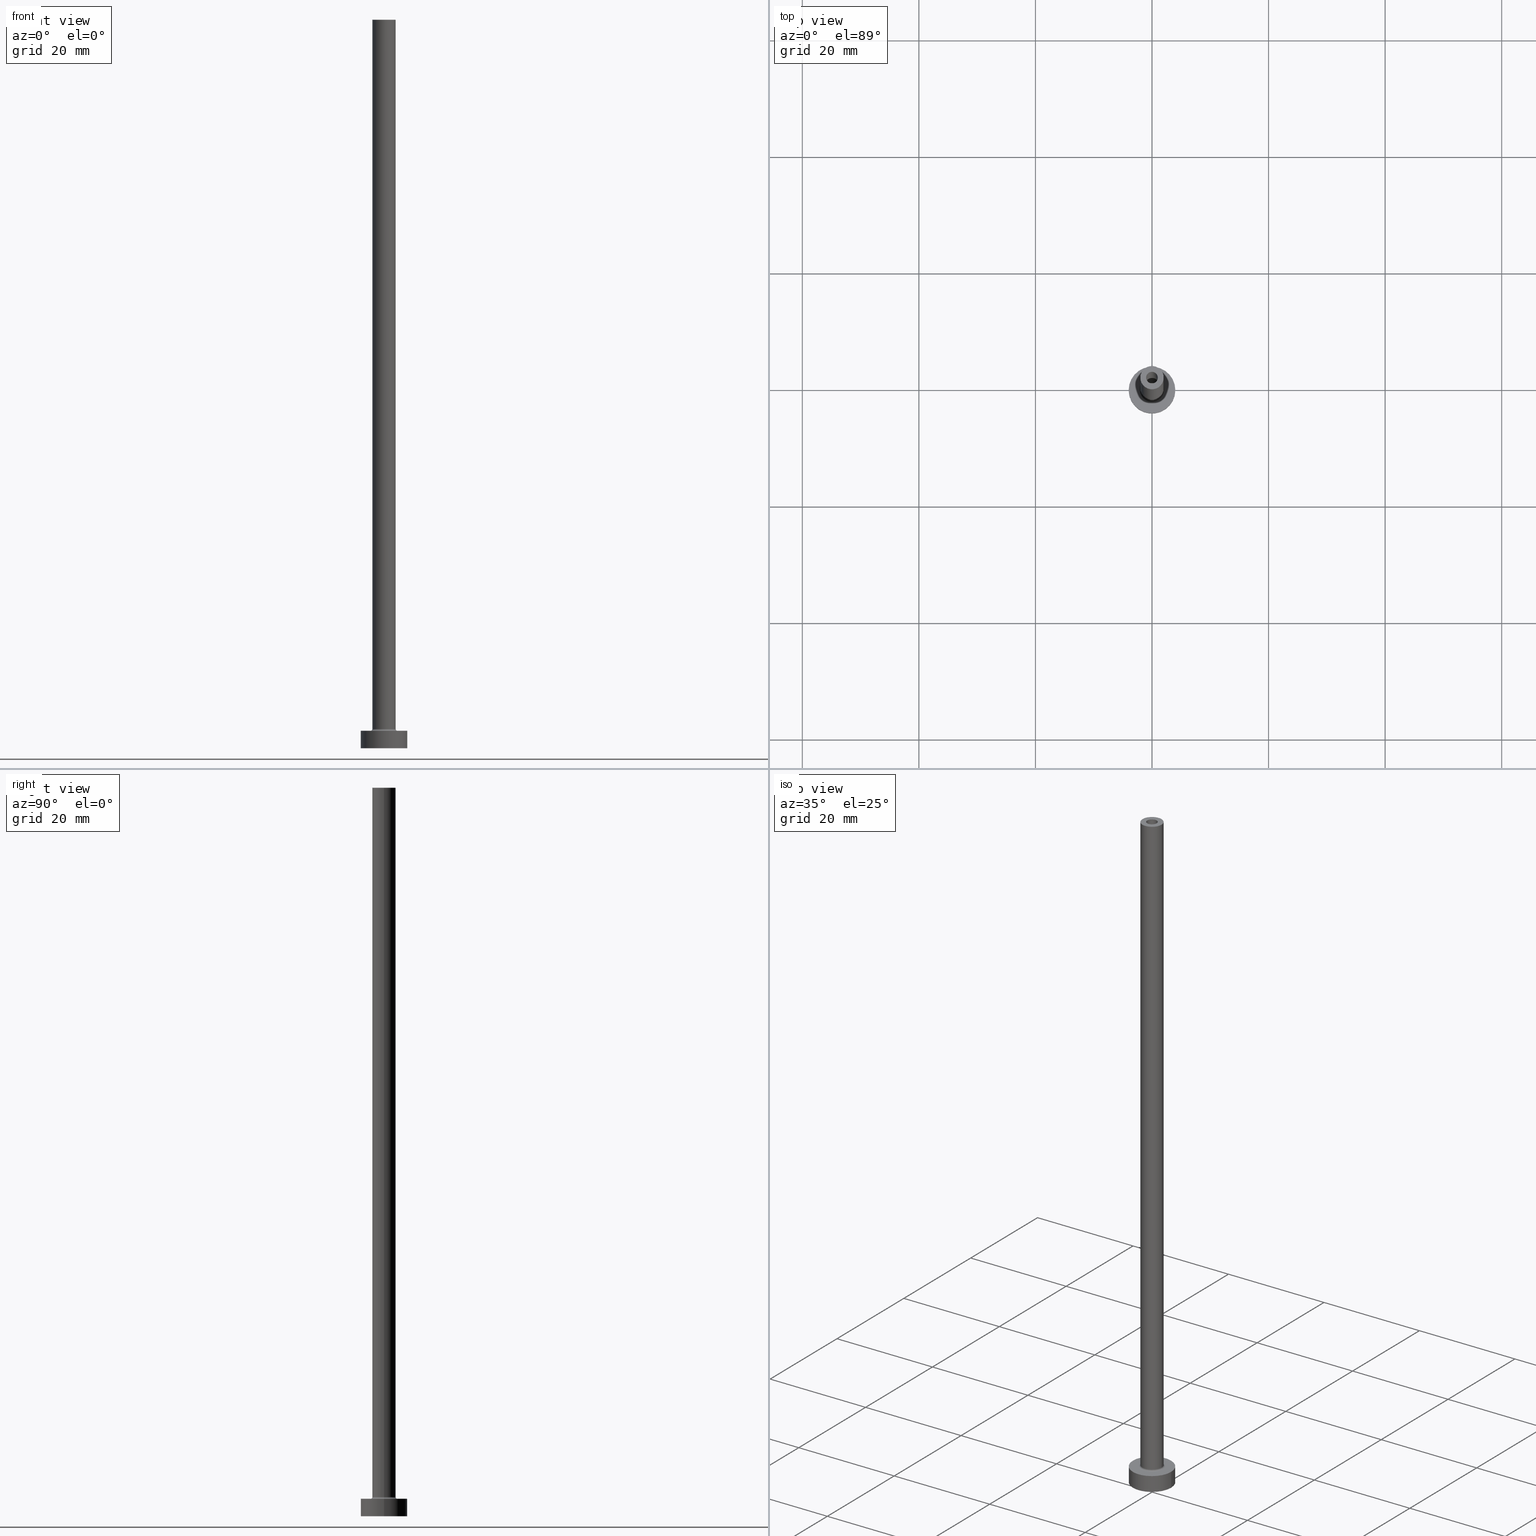
[diagram: canonical four-view strip — front | top / right | iso, engineering-drawing reading convention]
A machine part, canonical four-view strip (front | top / right | iso — engineering-drawing reading convention). The complete STEP part file that produces these views, byte-faithful:
ISO-10303-21;
HEADER;
FILE_DESCRIPTION (( 'STEP AP203' ),
    '1' );
FILE_NAME ('e7a0.STEP',
    '2023-02-13T12:51:04',
    ( '' ),
    ( '' ),
    'SwSTEP 2.0',
    'SolidWorks 2019',
    '' );
FILE_SCHEMA (( 'CONFIG_CONTROL_DESIGN' ));
ENDSEC;

DATA;
#1 = CARTESIAN_POINT ( 'NONE',  ( 0.000000000000000000, 0.000000000000000000, 125.0000000000000000 ) ) ;
#2 = SECURITY_CLASSIFICATION_LEVEL ( 'unclassified' ) ;
#3 = CIRCLE ( 'NONE', #416, 1.149999999999999911 ) ;
#4 =( NAMED_UNIT ( * ) SI_UNIT ( $, .STERADIAN. ) SOLID_ANGLE_UNIT ( ) );
#5 = CC_DESIGN_APPROVAL ( #181, ( #192 ) ) ;
#6 = DIRECTION ( 'NONE',  ( 0.000000000000000000, 0.000000000000000000, 1.000000000000000000 ) ) ;
#7 = ORIENTED_EDGE ( 'NONE', *, *, #380, .T. ) ;
#8 = EDGE_LOOP ( 'NONE', ( #263, #45, #458, #90 ) ) ;
#9 = FACE_OUTER_BOUND ( 'NONE', #265, .T. ) ;
#10 = CC_DESIGN_PERSON_AND_ORGANIZATION_ASSIGNMENT ( #229, #414, ( #385 ) ) ;
#11 = CIRCLE ( 'NONE', #269, 2.000000000000000000 ) ;
#12 = EDGE_LOOP ( 'NONE', ( #66, #330, #14, #21 ) ) ;
#13 = AXIS2_PLACEMENT_3D ( 'NONE', #328, #247, #244 ) ;
#14 = ORIENTED_EDGE ( 'NONE', *, *, #155, .T. ) ;
#15 = DIRECTION ( 'NONE',  ( -0.000000000000000000, -0.000000000000000000, -1.000000000000000000 ) ) ;
#16 = ADVANCED_BREP_SHAPE_REPRESENTATION ( 'e7a0', ( #326, #33 ), #146 ) ;
#17 = CARTESIAN_POINT ( 'NONE',  ( 0.000000000000000000, 0.000000000000000000, 3.000000000000000000 ) ) ;
#18 = EDGE_LOOP ( 'NONE', ( #426, #252, #58, #124 ) ) ;
#19 = VERTEX_POINT ( 'NONE', #428 ) ;
#20 = CARTESIAN_POINT ( 'NONE',  ( -4.000000000000000000, 0.000000000000000000, 3.000000000000000000 ) ) ;
#21 = ORIENTED_EDGE ( 'NONE', *, *, #68, .F. ) ;
#22 = CC_DESIGN_PERSON_AND_ORGANIZATION_ASSIGNMENT ( #431, #370, ( #159 ) ) ;
#23 = AXIS2_PLACEMENT_3D ( 'NONE', #209, #433, #393 ) ;
#24 = FACE_BOUND ( 'NONE', #162, .T. ) ;
#25 = DATE_AND_TIME ( #207, #176 ) ;
#26 = DIRECTION ( 'NONE',  ( 1.000000000000000000, 0.000000000000000000, -0.000000000000000000 ) ) ;
#27 = ORIENTED_EDGE ( 'NONE', *, *, #386, .F. ) ;
#28 = CARTESIAN_POINT ( 'NONE',  ( -2.299999999999999822, 2.816687638038912056E-16, 2.999999999999998668 ) ) ;
#29 = ADVANCED_FACE ( 'NONE', ( #167 ), #355, .F. ) ;
#30 = DATE_AND_TIME ( #351, #248 ) ;
#31 = CARTESIAN_POINT ( 'NONE',  ( 2.299999999999999822, 0.000000000000000000, 3.299999999999997158 ) ) ;
#32 = PERSON_AND_ORGANIZATION ( #59, #199 ) ;
#33 = AXIS2_PLACEMENT_3D ( 'NONE', #137, #280, #343 ) ;
#34 = DIRECTION ( 'NONE',  ( 1.000000000000000000, 0.000000000000000000, 0.000000000000000000 ) ) ;
#35 = DIRECTION ( 'NONE',  ( 0.000000000000000000, 0.000000000000000000, 1.000000000000000000 ) ) ;
#36 = CLOSED_SHELL ( 'NONE', ( #372, #397, #241, #329, #344, #297, #91, #76, #51, #140, #350, #160, #308, #29 ) ) ;
#37 = CIRCLE ( 'NONE', #299, 4.000000000000000000 ) ;
#38 = CC_DESIGN_APPROVAL ( #224, ( #218 ) ) ;
#39 = ORIENTED_EDGE ( 'NONE', *, *, #125, .T. ) ;
#40 = EDGE_CURVE ( 'NONE', #449, #242, #64, .T. ) ;
#41 = DESIGN_CONTEXT ( 'detailed design', #253, 'design' ) ;
#42 = VECTOR ( 'NONE', #321, 1000.000000000000000 ) ;
#43 = PRODUCT_RELATED_PRODUCT_CATEGORY ( 'detail', '', ( #385 ) ) ;
#44 = PLANE ( 'NONE',  #82 ) ;
#45 = ORIENTED_EDGE ( 'NONE', *, *, #270, .F. ) ;
#46 = ORIENTED_EDGE ( 'NONE', *, *, #461, .T. ) ;
#47 = ORIENTED_EDGE ( 'NONE', *, *, #257, .T. ) ;
#48 = CARTESIAN_POINT ( 'NONE',  ( 4.000000000000000000, 4.898587196589412829E-16, 3.000000000000000000 ) ) ;
#49 = AXIS2_PLACEMENT_3D ( 'NONE', #249, #110, #331 ) ;
#50 = ORIENTED_EDGE ( 'NONE', *, *, #302, .F. ) ;
#51 = ADVANCED_FACE ( 'NONE', ( #421 ), #376, .T. ) ;
#52 = CARTESIAN_POINT ( 'NONE',  ( -1.149999999999999911, 0.000000000000000000, 0.000000000000000000 ) ) ;
#53 = APPROVAL_ROLE ( '' ) ;
#54 = CARTESIAN_POINT ( 'NONE',  ( -1.149999999999999911, 0.000000000000000000, 90.00000000000000000 ) ) ;
#55 = CIRCLE ( 'NONE', #324, 1.000000000000000000 ) ;
#56 = DIRECTION ( 'NONE',  ( 0.000000000000000000, 0.000000000000000000, 1.000000000000000000 ) ) ;
#57 = EDGE_CURVE ( 'NONE', #223, #323, #201, .T. ) ;
#58 = ORIENTED_EDGE ( 'NONE', *, *, #57, .T. ) ;
#59 = PERSON ( 'NEUR�EN�', 'NEUR�EN�', 'NEUR�EN�', ('NEUR�EN�'), ('NEUR�EN�'), ('NEUR�EN�') ) ;
#60 = DIRECTION ( 'NONE',  ( -1.000000000000000000, 0.000000000000000000, 0.000000000000000000 ) ) ;
#61 = FACE_BOUND ( 'NONE', #407, .T. ) ;
#62 = CARTESIAN_POINT ( 'NONE',  ( 1.000000000000000000, 1.224646799147353207E-16, 125.0000000000000000 ) ) ;
#63 = EDGE_LOOP ( 'NONE', ( #327, #345, #272, #338 ) ) ;
#64 = CIRCLE ( 'NONE', #399, 0.2999999999999999334 ) ;
#65 = AXIS2_PLACEMENT_3D ( 'NONE', #294, #444, #179 ) ;
#66 = ORIENTED_EDGE ( 'NONE', *, *, #290, .F. ) ;
#67 = CYLINDRICAL_SURFACE ( 'NONE', #23, 4.000000000000000000 ) ;
#68 = EDGE_CURVE ( 'NONE', #282, #288, #347, .T. ) ;
#69 = ORIENTED_EDGE ( 'NONE', *, *, #275, .T. ) ;
#70 = DIRECTION ( 'NONE',  ( -1.000000000000000000, 1.224646799147353207E-16, 0.000000000000000000 ) ) ;
#71 = CARTESIAN_POINT ( 'NONE',  ( -1.000000000000000000, 0.000000000000000000, 125.0000000000000000 ) ) ;
#72 = DIRECTION ( 'NONE',  ( 0.000000000000000000, 0.000000000000000000, 1.000000000000000000 ) ) ;
#73 = FACE_OUTER_BOUND ( 'NONE', #98, .T. ) ;
#74 = CIRCLE ( 'NONE', #169, 2.000000000000000000 ) ;
#75 = APPROVAL_PERSON_ORGANIZATION ( #298, #224, #53 ) ;
#76 = ADVANCED_FACE ( 'NONE', ( #164, #305 ), #453, .F. ) ;
#77 = CYLINDRICAL_SURFACE ( 'NONE', #429, 1.149999999999999911 ) ;
#78 = COORDINATED_UNIVERSAL_TIME_OFFSET ( 1, 0, .AHEAD. ) ;
#79 = ORIENTED_EDGE ( 'NONE', *, *, #211, .F. ) ;
#80 = PERSON_AND_ORGANIZATION ( #59, #199 ) ;
#81 = CARTESIAN_POINT ( 'NONE',  ( 2.000000000000000000, 2.449293598294705921E-16, 125.0000000000000000 ) ) ;
#82 = AXIS2_PLACEMENT_3D ( 'NONE', #17, #447, #26 ) ;
#83 = DIRECTION ( 'NONE',  ( 0.000000000000000000, 0.000000000000000000, 1.000000000000000000 ) ) ;
#84 = LINE ( 'NONE', #183, #450 ) ;
#85 = ORIENTED_EDGE ( 'NONE', *, *, #380, .F. ) ;
#86 = ORIENTED_EDGE ( 'NONE', *, *, #377, .T. ) ;
#87 = VERTEX_POINT ( 'NONE', #81 ) ;
#88 = DIRECTION ( 'NONE',  ( -0.000000000000000000, -0.000000000000000000, -1.000000000000000000 ) ) ;
#89 = ORIENTED_EDGE ( 'NONE', *, *, #125, .F. ) ;
#90 = ORIENTED_EDGE ( 'NONE', *, *, #334, .F. ) ;
#91 = ADVANCED_FACE ( 'NONE', ( #336, #219 ), #44, .T. ) ;
#92 = ORIENTED_EDGE ( 'NONE', *, *, #188, .F. ) ;
#93 = EDGE_LOOP ( 'NONE', ( #86, #221 ) ) ;
#94 = LINE ( 'NONE', #454, #333 ) ;
#95 = ORIENTED_EDGE ( 'NONE', *, *, #412, .T. ) ;
#96 = FACE_OUTER_BOUND ( 'NONE', #141, .T. ) ;
#97 = DIRECTION ( 'NONE',  ( 0.000000000000000000, 0.000000000000000000, -1.000000000000000000 ) ) ;
#98 = EDGE_LOOP ( 'NONE', ( #374, #185, #413, #388 ) ) ;
#99 = DIRECTION ( 'NONE',  ( 0.000000000000000000, 0.000000000000000000, 1.000000000000000000 ) ) ;
#100 = DIRECTION ( 'NONE',  ( 1.000000000000000000, 0.000000000000000000, 0.000000000000000000 ) ) ;
#101 = VECTOR ( 'NONE', #234, 1000.000000000000000 ) ;
#102 = DIRECTION ( 'NONE',  ( 0.000000000000000000, 0.000000000000000000, 1.000000000000000000 ) ) ;
#103 = CC_DESIGN_PERSON_AND_ORGANIZATION_ASSIGNMENT ( #457, #139, ( #192 ) ) ;
#104 = DIRECTION ( 'NONE',  ( 1.000000000000000000, 0.000000000000000000, 0.000000000000000000 ) ) ;
#105 = APPROVAL_DATE_TIME ( #200, #224 ) ;
#106 = DIRECTION ( 'NONE',  ( 1.000000000000000000, 0.000000000000000000, -0.000000000000000000 ) ) ;
#107 = CIRCLE ( 'NONE', #371, 4.000000000000000000 ) ;
#108 = CALENDAR_DATE ( 2023, 13, 2 ) ;
#109 = UNCERTAINTY_MEASURE_WITH_UNIT (LENGTH_MEASURE( 1.000000000000000082E-05 ), #213, 'distance_accuracy_value', 'NONE');
#110 = DIRECTION ( 'NONE',  ( 0.000000000000000000, 0.000000000000000000, 1.000000000000000000 ) ) ;
#111 = DIRECTION ( 'NONE',  ( 1.000000000000000000, 0.000000000000000000, 0.000000000000000000 ) ) ;
#112 = EDGE_CURVE ( 'NONE', #417, #323, #442, .T. ) ;
#113 = APPLICATION_PROTOCOL_DEFINITION ( 'international standard', 'config_control_design', 1994, #227 ) ;
#114 = ORIENTED_EDGE ( 'NONE', *, *, #170, .F. ) ;
#115 = CARTESIAN_POINT ( 'NONE',  ( 0.000000000000000000, 0.000000000000000000, 90.00000000000000000 ) ) ;
#116 = VECTOR ( 'NONE', #97, 1000.000000000000000 ) ;
#117 = CIRCLE ( 'NONE', #49, 2.000000000000000000 ) ;
#118 = CALENDAR_DATE ( 2023, 13, 2 ) ;
#119 = CARTESIAN_POINT ( 'NONE',  ( 0.000000000000000000, 0.000000000000000000, 3.299999999999997158 ) ) ;
#120 = AXIS2_PLACEMENT_3D ( 'NONE', #212, #35, #100 ) ;
#121 = CARTESIAN_POINT ( 'NONE',  ( 2.000000000000000000, 2.449293598294705921E-16, 125.0000000000000000 ) ) ;
#122 = ORIENTED_EDGE ( 'NONE', *, *, #197, .F. ) ;
#123 = DIRECTION ( 'NONE',  ( 0.000000000000000000, 0.000000000000000000, -1.000000000000000000 ) ) ;
#124 = ORIENTED_EDGE ( 'NONE', *, *, #112, .F. ) ;
#125 = EDGE_CURVE ( 'NONE', #375, #204, #246, .T. ) ;
#126 = DIRECTION ( 'NONE',  ( 1.000000000000000000, 0.000000000000000000, 0.000000000000000000 ) ) ;
#127 = CIRCLE ( 'NONE', #389, 0.2999999999999999334 ) ;
#128 = AXIS2_PLACEMENT_3D ( 'NONE', #362, #174, #149 ) ;
#129 = CC_DESIGN_APPROVAL ( #235, ( #159 ) ) ;
#130 = DIRECTION ( 'NONE',  ( 1.000000000000000000, 0.000000000000000000, 0.000000000000000000 ) ) ;
#131 = DIRECTION ( 'NONE',  ( -0.000000000000000000, -0.000000000000000000, -1.000000000000000000 ) ) ;
#132 = CC_DESIGN_PERSON_AND_ORGANIZATION_ASSIGNMENT ( #32, #311, ( #192 ) ) ;
#133 = DIRECTION ( 'NONE',  ( 0.000000000000000000, 0.000000000000000000, 1.000000000000000000 ) ) ;
#134 = DIRECTION ( 'NONE',  ( -0.000000000000000000, -0.000000000000000000, -1.000000000000000000 ) ) ;
#135 = LOCAL_TIME ( 13, 51, 4.000000000000000000, #251 ) ;
#136 = DIRECTION ( 'NONE',  ( 0.000000000000000000, 0.000000000000000000, -1.000000000000000000 ) ) ;
#137 = CARTESIAN_POINT ( 'NONE',  ( 0.000000000000000000, 0.000000000000000000, 0.000000000000000000 ) ) ;
#138 = VERTEX_POINT ( 'NONE', #54 ) ;
#139 = PERSON_AND_ORGANIZATION_ROLE ( 'design_supplier' ) ;
#140 = ADVANCED_FACE ( 'NONE', ( #24, #163 ), #142, .T. ) ;
#141 = EDGE_LOOP ( 'NONE', ( #92, #69, #306, #122 ) ) ;
#142 = PLANE ( 'NONE',  #145 ) ;
#143 = DIRECTION ( 'NONE',  ( 1.000000000000000000, 0.000000000000000000, -0.000000000000000000 ) ) ;
#144 = DIRECTION ( 'NONE',  ( 0.000000000000000000, 0.000000000000000000, 1.000000000000000000 ) ) ;
#145 = AXIS2_PLACEMENT_3D ( 'NONE', #434, #210, #106 ) ;
#146 =( GEOMETRIC_REPRESENTATION_CONTEXT ( 3 ) GLOBAL_UNCERTAINTY_ASSIGNED_CONTEXT ( ( #109 ) ) GLOBAL_UNIT_ASSIGNED_CONTEXT ( ( #213, #172, #4 ) ) REPRESENTATION_CONTEXT ( 'NONE', 'WORKASPACE' ) );
#147 = DIRECTION ( 'NONE',  ( 1.000000000000000000, 0.000000000000000000, 0.000000000000000000 ) ) ;
#148 = EDGE_CURVE ( 'NONE', #254, #223, #303, .T. ) ;
#149 = DIRECTION ( 'NONE',  ( 1.000000000000000000, 0.000000000000000000, 0.000000000000000000 ) ) ;
#150 = AXIS2_PLACEMENT_3D ( 'NONE', #381, #310, #196 ) ;
#151 = AXIS2_PLACEMENT_3D ( 'NONE', #300, #295, #228 ) ;
#152 = CC_DESIGN_SECURITY_CLASSIFICATION ( #159, ( #192 ) ) ;
#153 = FACE_OUTER_BOUND ( 'NONE', #230, .T. ) ;
#154 = DATE_AND_TIME ( #118, #135 ) ;
#155 = EDGE_CURVE ( 'NONE', #384, #288, #240, .T. ) ;
#156 = CARTESIAN_POINT ( 'NONE',  ( -4.000000000000000000, 0.000000000000000000, 3.000000000000000000 ) ) ;
#157 = EDGE_LOOP ( 'NONE', ( #114, #89 ) ) ;
#158 = TOROIDAL_SURFACE ( 'NONE', #128, 2.299999999999999822, 0.2999999999999999889 ) ;
#159 = SECURITY_CLASSIFICATION ( '', '', #2 ) ;
#160 = ADVANCED_FACE ( 'NONE', ( #73 ), #77, .F. ) ;
#161 = CARTESIAN_POINT ( 'NONE',  ( 1.000000000000000000, 1.224646799147353207E-16, 125.0000000000000000 ) ) ;
#162 = EDGE_LOOP ( 'NONE', ( #85, #452 ) ) ;
#163 = FACE_OUTER_BOUND ( 'NONE', #93, .T. ) ;
#164 = FACE_BOUND ( 'NONE', #157, .T. ) ;
#165 = APPROVAL_STATUS ( 'not_yet_approved' ) ;
#166 = PRODUCT_DEFINITION_SHAPE ( 'NONE', 'NONE',  #218 ) ;
#167 = FACE_OUTER_BOUND ( 'NONE', #18, .T. ) ;
#168 = AXIS2_PLACEMENT_3D ( 'NONE', #238, #56, #143 ) ;
#169 = AXIS2_PLACEMENT_3D ( 'NONE', #358, #171, #104 ) ;
#170 = EDGE_CURVE ( 'NONE', #204, #375, #456, .T. ) ;
#171 = DIRECTION ( 'NONE',  ( 0.000000000000000000, 0.000000000000000000, 1.000000000000000000 ) ) ;
#172 =( NAMED_UNIT ( * ) PLANE_ANGLE_UNIT ( ) SI_UNIT ( $, .RADIAN. ) );
#173 = CARTESIAN_POINT ( 'NONE',  ( 0.000000000000000000, 0.000000000000000000, 90.00000000000000000 ) ) ;
#174 = DIRECTION ( 'NONE',  ( 0.000000000000000000, 0.000000000000000000, 1.000000000000000000 ) ) ;
#175 = VECTOR ( 'NONE', #404, 1000.000000000000000 ) ;
#176 = LOCAL_TIME ( 13, 51, 4.000000000000000000, #348 ) ;
#177 = VERTEX_POINT ( 'NONE', #394 ) ;
#178 = DIRECTION ( 'NONE',  ( -1.000000000000000000, 0.000000000000000000, 0.000000000000000000 ) ) ;
#179 = DIRECTION ( 'NONE',  ( 1.000000000000000000, 0.000000000000000000, 0.000000000000000000 ) ) ;
#180 = AXIS2_PLACEMENT_3D ( 'NONE', #225, #15, #186 ) ;
#181 = APPROVAL ( #274, 'NEUR�EN�' ) ;
#182 = LOCAL_TIME ( 13, 51, 4.000000000000000000, #403 ) ;
#183 = CARTESIAN_POINT ( 'NONE',  ( 1.149999999999999911, 1.408343819019456028E-16, 93.25269119345810509 ) ) ;
#184 = FACE_OUTER_BOUND ( 'NONE', #340, .T. ) ;
#185 = ORIENTED_EDGE ( 'NONE', *, *, #211, .T. ) ;
#186 = DIRECTION ( 'NONE',  ( -1.000000000000000000, 0.000000000000000000, 0.000000000000000000 ) ) ;
#187 = LINE ( 'NONE', #48, #293 ) ;
#188 = EDGE_CURVE ( 'NONE', #87, #267, #198, .T. ) ;
#189 = ORIENTED_EDGE ( 'NONE', *, *, #425, .T. ) ;
#190 = ORIENTED_EDGE ( 'NONE', *, *, #57, .F. ) ;
#191 = AXIS2_PLACEMENT_3D ( 'NONE', #432, #391, #111 ) ;
#192 = PRODUCT_DEFINITION_FORMATION_WITH_SPECIFIED_SOURCE ( 'LIBOVOLN�', '', #385, .NOT_KNOWN. ) ;
#193 = CARTESIAN_POINT ( 'NONE',  ( 0.000000000000000000, 0.000000000000000000, 3.000000000000000000 ) ) ;
#194 = CARTESIAN_POINT ( 'NONE',  ( 0.000000000000000000, 0.000000000000000000, 0.000000000000000000 ) ) ;
#195 = VERTEX_POINT ( 'NONE', #28 ) ;
#196 = DIRECTION ( 'NONE',  ( -1.000000000000000000, 0.000000000000000000, 0.000000000000000000 ) ) ;
#197 = EDGE_CURVE ( 'NONE', #267, #177, #94, .T. ) ;
#198 = CIRCLE ( 'NONE', #120, 2.000000000000000000 ) ;
#199 = ORGANIZATION ( 'NEUR�EN�', 'NEUR�EN�', '' ) ;
#200 = DATE_AND_TIME ( #315, #339 ) ;
#201 = LINE ( 'NONE', #419, #116 ) ;
#202 = DIRECTION ( 'NONE',  ( -0.000000000000000000, -0.000000000000000000, -1.000000000000000000 ) ) ;
#203 = APPROVAL_ROLE ( '' ) ;
#204 = VERTEX_POINT ( 'NONE', #52 ) ;
#205 = CARTESIAN_POINT ( 'NONE',  ( -2.299999999999999822, 2.816687638038912056E-16, 3.299999999999997158 ) ) ;
#206 = EDGE_CURVE ( 'NONE', #282, #268, #382, .T. ) ;
#207 = CALENDAR_DATE ( 2023, 13, 2 ) ;
#208 = AXIS2_PLACEMENT_3D ( 'NONE', #193, #296, #438 ) ;
#209 = CARTESIAN_POINT ( 'NONE',  ( 0.000000000000000000, 0.000000000000000000, 3.000000000000000000 ) ) ;
#210 = DIRECTION ( 'NONE',  ( 0.000000000000000000, 0.000000000000000000, 1.000000000000000000 ) ) ;
#211 = EDGE_CURVE ( 'NONE', #19, #138, #3, .T. ) ;
#212 = CARTESIAN_POINT ( 'NONE',  ( 0.000000000000000000, 0.000000000000000000, 125.0000000000000000 ) ) ;
#213 =( LENGTH_UNIT ( ) NAMED_UNIT ( * ) SI_UNIT ( .MILLI., .METRE. ) );
#214 = FACE_OUTER_BOUND ( 'NONE', #63, .T. ) ;
#215 = AXIS2_PLACEMENT_3D ( 'NONE', #292, #72, #34 ) ;
#216 = EDGE_LOOP ( 'NONE', ( #259, #448 ) ) ;
#217 = CYLINDRICAL_SURFACE ( 'NONE', #151, 1.149999999999999911 ) ;
#218 = PRODUCT_DEFINITION ( 'NEZN�M�', '', #192, #41 ) ;
#219 = FACE_OUTER_BOUND ( 'NONE', #441, .T. ) ;
#220 = AXIS2_PLACEMENT_3D ( 'NONE', #307, #353, #239 ) ;
#221 = ORIENTED_EDGE ( 'NONE', *, *, #188, .T. ) ;
#222 = ORIENTED_EDGE ( 'NONE', *, *, #206, .T. ) ;
#223 = VERTEX_POINT ( 'NONE', #71 ) ;
#224 = APPROVAL ( #271, 'NEUR�EN�' ) ;
#225 = CARTESIAN_POINT ( 'NONE',  ( 0.000000000000000000, 0.000000000000000000, 3.000000000000000000 ) ) ;
#226 = ORIENTED_EDGE ( 'NONE', *, *, #257, .F. ) ;
#227 = APPLICATION_CONTEXT ( 'configuration controlled 3d designs of mechanical parts and assemblies' ) ;
#228 = DIRECTION ( 'NONE',  ( -1.000000000000000000, 0.000000000000000000, 0.000000000000000000 ) ) ;
#229 = PERSON_AND_ORGANIZATION ( #59, #199 ) ;
#230 = EDGE_LOOP ( 'NONE', ( #266, #424, #39, #50 ) ) ;
#231 = AXIS2_PLACEMENT_3D ( 'NONE', #194, #451, #130 ) ;
#232 = PLANE ( 'NONE',  #284 ) ;
#233 = ORIENTED_EDGE ( 'NONE', *, *, #197, .T. ) ;
#234 = DIRECTION ( 'NONE',  ( 0.000000000000000000, 0.000000000000000000, -1.000000000000000000 ) ) ;
#235 = APPROVAL ( #165, 'NEUR�EN�' ) ;
#236 = DIRECTION ( 'NONE',  ( 1.000000000000000000, 0.000000000000000000, 0.000000000000000000 ) ) ;
#237 = CYLINDRICAL_SURFACE ( 'NONE', #220, 2.000000000000000000 ) ;
#238 = CARTESIAN_POINT ( 'NONE',  ( 0.000000000000000000, 0.000000000000000000, 0.000000000000000000 ) ) ;
#239 = DIRECTION ( 'NONE',  ( -1.000000000000000000, 0.000000000000000000, 0.000000000000000000 ) ) ;
#240 = CIRCLE ( 'NONE', #406, 4.000000000000000000 ) ;
#241 = ADVANCED_FACE ( 'NONE', ( #214 ), #255, .F. ) ;
#242 = VERTEX_POINT ( 'NONE', #260 ) ;
#243 = LINE ( 'NONE', #121, #175 ) ;
#244 = DIRECTION ( 'NONE',  ( -1.000000000000000000, 0.000000000000000000, 0.000000000000000000 ) ) ;
#245 = DIRECTION ( 'NONE',  ( 0.000000000000000000, 0.000000000000000000, -1.000000000000000000 ) ) ;
#246 = CIRCLE ( 'NONE', #231, 1.149999999999999911 ) ;
#247 = DIRECTION ( 'NONE',  ( 0.000000000000000000, 0.000000000000000000, -1.000000000000000000 ) ) ;
#248 = LOCAL_TIME ( 13, 51, 4.000000000000000000, #460 ) ;
#249 = CARTESIAN_POINT ( 'NONE',  ( 0.000000000000000000, 0.000000000000000000, 3.299999999999997158 ) ) ;
#250 = DIRECTION ( 'NONE',  ( 1.224646799147353207E-16, 1.000000000000000000, -0.000000000000000000 ) ) ;
#251 = COORDINATED_UNIVERSAL_TIME_OFFSET ( 1, 0, .AHEAD. ) ;
#252 = ORIENTED_EDGE ( 'NONE', *, *, #148, .T. ) ;
#253 = APPLICATION_CONTEXT ( 'configuration controlled 3d designs of mechanical parts and assemblies' ) ;
#254 = VERTEX_POINT ( 'NONE', #62 ) ;
#255 = TOROIDAL_SURFACE ( 'NONE', #65, 2.299999999999999822, 0.2999999999999999889 ) ;
#256 = MECHANICAL_CONTEXT ( 'NONE', #227, 'mechanical' ) ;
#257 = EDGE_CURVE ( 'NONE', #323, #417, #55, .T. ) ;
#258 = DIRECTION ( 'NONE',  ( 1.000000000000000000, 0.000000000000000000, 0.000000000000000000 ) ) ;
#259 = ORIENTED_EDGE ( 'NONE', *, *, #461, .F. ) ;
#260 = CARTESIAN_POINT ( 'NONE',  ( 2.299999999999999822, 0.000000000000000000, 2.999999999999998668 ) ) ;
#261 = DIRECTION ( 'NONE',  ( 1.000000000000000000, 0.000000000000000000, 0.000000000000000000 ) ) ;
#262 = APPROVAL_PERSON_ORGANIZATION ( #80, #235, #436 ) ;
#263 = ORIENTED_EDGE ( 'NONE', *, *, #455, .F. ) ;
#264 = DIRECTION ( 'NONE',  ( 1.000000000000000000, 0.000000000000000000, 0.000000000000000000 ) ) ;
#265 = EDGE_LOOP ( 'NONE', ( #7, #318, #226, #190 ) ) ;
#266 = ORIENTED_EDGE ( 'NONE', *, *, #365, .T. ) ;
#267 = VERTEX_POINT ( 'NONE', #316 ) ;
#268 = VERTEX_POINT ( 'NONE', #427 ) ;
#269 = AXIS2_PLACEMENT_3D ( 'NONE', #119, #342, #261 ) ;
#270 = EDGE_CURVE ( 'NONE', #449, #177, #117, .T. ) ;
#271 = APPROVAL_STATUS ( 'not_yet_approved' ) ;
#272 = ORIENTED_EDGE ( 'NONE', *, *, #412, .F. ) ;
#273 = DIRECTION ( 'NONE',  ( 1.000000000000000000, 0.000000000000000000, -0.000000000000000000 ) ) ;
#274 = APPROVAL_STATUS ( 'not_yet_approved' ) ;
#275 = EDGE_CURVE ( 'NONE', #87, #449, #243, .T. ) ;
#276 = AXIS2_PLACEMENT_3D ( 'NONE', #446, #202, #126 ) ;
#277 = CARTESIAN_POINT ( 'NONE',  ( 0.000000000000000000, 0.000000000000000000, 3.000000000000000000 ) ) ;
#278 = PERSON_AND_ORGANIZATION_ROLE ( 'creator' ) ;
#279 = DIRECTION ( 'NONE',  ( 0.000000000000000000, -1.000000000000000000, 0.000000000000000000 ) ) ;
#280 = DIRECTION ( 'NONE',  ( 0.000000000000000000, 0.000000000000000000, 1.000000000000000000 ) ) ;
#281 = DIRECTION ( 'NONE',  ( 0.000000000000000000, 0.000000000000000000, 1.000000000000000000 ) ) ;
#282 = VERTEX_POINT ( 'NONE', #156 ) ;
#283 = FACE_OUTER_BOUND ( 'NONE', #8, .T. ) ;
#284 = AXIS2_PLACEMENT_3D ( 'NONE', #346, #99, #273 ) ;
#285 = DIRECTION ( 'NONE',  ( -0.000000000000000000, -0.000000000000000000, -1.000000000000000000 ) ) ;
#286 = SHAPE_DEFINITION_REPRESENTATION ( #166, #16 ) ;
#287 = CARTESIAN_POINT ( 'NONE',  ( 0.000000000000000000, 0.000000000000000000, 0.000000000000000000 ) ) ;
#288 = VERTEX_POINT ( 'NONE', #439 ) ;
#289 = ORIENTED_EDGE ( 'NONE', *, *, #275, .F. ) ;
#290 = EDGE_CURVE ( 'NONE', #268, #282, #37, .T. ) ;
#291 = CARTESIAN_POINT ( 'NONE',  ( -1.149999999999999911, 0.000000000000000000, 93.25269119345810509 ) ) ;
#292 = CARTESIAN_POINT ( 'NONE',  ( 0.000000000000000000, 0.000000000000000000, 90.00000000000000000 ) ) ;
#293 = VECTOR ( 'NONE', #88, 1000.000000000000000 ) ;
#294 = CARTESIAN_POINT ( 'NONE',  ( 0.000000000000000000, 0.000000000000000000, 3.299999999999997158 ) ) ;
#295 = DIRECTION ( 'NONE',  ( 0.000000000000000000, 0.000000000000000000, -1.000000000000000000 ) ) ;
#296 = DIRECTION ( 'NONE',  ( -0.000000000000000000, -0.000000000000000000, -1.000000000000000000 ) ) ;
#297 = ADVANCED_FACE ( 'NONE', ( #184 ), #335, .T. ) ;
#298 = PERSON_AND_ORGANIZATION ( #59, #199 ) ;
#299 = AXIS2_PLACEMENT_3D ( 'NONE', #408, #83, #341 ) ;
#300 = CARTESIAN_POINT ( 'NONE',  ( 0.000000000000000000, 0.000000000000000000, 93.25269119345810509 ) ) ;
#301 = FACE_OUTER_BOUND ( 'NONE', #373, .T. ) ;
#302 = EDGE_CURVE ( 'NONE', #138, #204, #337, .T. ) ;
#303 = CIRCLE ( 'NONE', #191, 1.000000000000000000 ) ;
#304 = ORIENTED_EDGE ( 'NONE', *, *, #290, .T. ) ;
#305 = FACE_OUTER_BOUND ( 'NONE', #216, .T. ) ;
#306 = ORIENTED_EDGE ( 'NONE', *, *, #270, .T. ) ;
#307 = CARTESIAN_POINT ( 'NONE',  ( 0.000000000000000000, 0.000000000000000000, 125.0000000000000000 ) ) ;
#308 = ADVANCED_FACE ( 'NONE', ( #61, #301 ), #232, .F. ) ;
#309 = DATE_TIME_ROLE ( 'creation_date' ) ;
#310 = DIRECTION ( 'NONE',  ( -0.000000000000000000, -0.000000000000000000, -1.000000000000000000 ) ) ;
#311 = PERSON_AND_ORGANIZATION_ROLE ( 'creator' ) ;
#312 = CIRCLE ( 'NONE', #276, 2.299999999999999822 ) ;
#313 = ORIENTED_EDGE ( 'NONE', *, *, #68, .T. ) ;
#314 = EDGE_LOOP ( 'NONE', ( #289, #411, #233, #189 ) ) ;
#315 = CALENDAR_DATE ( 2023, 13, 2 ) ;
#316 = CARTESIAN_POINT ( 'NONE',  ( -2.000000000000000000, 0.000000000000000000, 125.0000000000000000 ) ) ;
#317 = CC_DESIGN_DATE_AND_TIME_ASSIGNMENT ( #154, #368, ( #159 ) ) ;
#318 = ORIENTED_EDGE ( 'NONE', *, *, #443, .T. ) ;
#319 = CARTESIAN_POINT ( 'NONE',  ( 1.149999999999999911, 1.408343819019456028E-16, 0.000000000000000000 ) ) ;
#320 = EDGE_LOOP ( 'NONE', ( #95, #379 ) ) ;
#321 = DIRECTION ( 'NONE',  ( 0.000000000000000000, 0.000000000000000000, -1.000000000000000000 ) ) ;
#322 = DIRECTION ( 'NONE',  ( 1.000000000000000000, 0.000000000000000000, 0.000000000000000000 ) ) ;
#323 = VERTEX_POINT ( 'NONE', #420 ) ;
#324 = AXIS2_PLACEMENT_3D ( 'NONE', #115, #395, #258 ) ;
#325 = APPROVAL_PERSON_ORGANIZATION ( #390, #181, #203 ) ;
#326 = MANIFOLD_SOLID_BREP ( 'Odebrat vysunut�m4', #36 ) ;
#327 = ORIENTED_EDGE ( 'NONE', *, *, #425, .F. ) ;
#328 = CARTESIAN_POINT ( 'NONE',  ( 0.000000000000000000, 0.000000000000000000, 125.0000000000000000 ) ) ;
#329 = ADVANCED_FACE ( 'NONE', ( #96 ), #237, .T. ) ;
#330 = ORIENTED_EDGE ( 'NONE', *, *, #386, .T. ) ;
#331 = DIRECTION ( 'NONE',  ( 1.000000000000000000, 0.000000000000000000, 0.000000000000000000 ) ) ;
#332 = CIRCLE ( 'NONE', #435, 1.000000000000000000 ) ;
#333 = VECTOR ( 'NONE', #134, 1000.000000000000000 ) ;
#334 = EDGE_CURVE ( 'NONE', #195, #242, #312, .T. ) ;
#335 = CYLINDRICAL_SURFACE ( 'NONE', #180, 4.000000000000000000 ) ;
#336 = FACE_BOUND ( 'NONE', #320, .T. ) ;
#337 = LINE ( 'NONE', #291, #101 ) ;
#338 = ORIENTED_EDGE ( 'NONE', *, *, #40, .F. ) ;
#339 = LOCAL_TIME ( 13, 51, 4.000000000000000000, #78 ) ;
#340 = EDGE_LOOP ( 'NONE', ( #27, #352, #313, #46 ) ) ;
#341 = DIRECTION ( 'NONE',  ( 1.000000000000000000, 0.000000000000000000, 0.000000000000000000 ) ) ;
#342 = DIRECTION ( 'NONE',  ( 0.000000000000000000, 0.000000000000000000, 1.000000000000000000 ) ) ;
#343 = DIRECTION ( 'NONE',  ( 1.000000000000000000, 0.000000000000000000, 0.000000000000000000 ) ) ;
#344 = ADVANCED_FACE ( 'NONE', ( #459 ), #67, .T. ) ;
#345 = ORIENTED_EDGE ( 'NONE', *, *, #455, .T. ) ;
#346 = CARTESIAN_POINT ( 'NONE',  ( 0.000000000000000000, 0.000000000000000000, 90.00000000000000000 ) ) ;
#347 = LINE ( 'NONE', #20, #378 ) ;
#348 = COORDINATED_UNIVERSAL_TIME_OFFSET ( 1, 0, .AHEAD. ) ;
#349 = AXIS2_PLACEMENT_3D ( 'NONE', #415, #133, #236 ) ;
#350 = ADVANCED_FACE ( 'NONE', ( #283 ), #158, .F. ) ;
#351 = CALENDAR_DATE ( 2023, 13, 2 ) ;
#352 = ORIENTED_EDGE ( 'NONE', *, *, #206, .F. ) ;
#353 = DIRECTION ( 'NONE',  ( -0.000000000000000000, -0.000000000000000000, -1.000000000000000000 ) ) ;
#354 = PERSON_AND_ORGANIZATION ( #59, #199 ) ;
#355 = CYLINDRICAL_SURFACE ( 'NONE', #364, 1.000000000000000000 ) ;
#356 = APPROVAL_DATE_TIME ( #25, #181 ) ;
#357 = CIRCLE ( 'NONE', #208, 2.299999999999999822 ) ;
#358 = CARTESIAN_POINT ( 'NONE',  ( 0.000000000000000000, 0.000000000000000000, 125.0000000000000000 ) ) ;
#359 = CC_DESIGN_DATE_AND_TIME_ASSIGNMENT ( #30, #309, ( #218 ) ) ;
#360 = CARTESIAN_POINT ( 'NONE',  ( 0.000000000000000000, 0.000000000000000000, 93.25269119345810509 ) ) ;
#361 = APPROVAL_DATE_TIME ( #402, #235 ) ;
#362 = CARTESIAN_POINT ( 'NONE',  ( 0.000000000000000000, 0.000000000000000000, 3.299999999999997158 ) ) ;
#363 = DIRECTION ( 'NONE',  ( 1.000000000000000000, 0.000000000000000000, 0.000000000000000000 ) ) ;
#364 = AXIS2_PLACEMENT_3D ( 'NONE', #383, #136, #60 ) ;
#365 = EDGE_CURVE ( 'NONE', #138, #19, #422, .T. ) ;
#366 = AXIS2_PLACEMENT_3D ( 'NONE', #277, #423, #392 ) ;
#367 = CYLINDRICAL_SURFACE ( 'NONE', #13, 1.000000000000000000 ) ;
#368 = DATE_TIME_ROLE ( 'classification_date' ) ;
#369 = LINE ( 'NONE', #161, #42 ) ;
#370 = PERSON_AND_ORGANIZATION_ROLE ( 'classification_officer' ) ;
#371 = AXIS2_PLACEMENT_3D ( 'NONE', #287, #281, #322 ) ;
#372 = ADVANCED_FACE ( 'NONE', ( #9 ), #367, .F. ) ;
#373 = EDGE_LOOP ( 'NONE', ( #396, #79 ) ) ;
#374 = ORIENTED_EDGE ( 'NONE', *, *, #405, .F. ) ;
#375 = VERTEX_POINT ( 'NONE', #319 ) ;
#376 = CYLINDRICAL_SURFACE ( 'NONE', #150, 2.000000000000000000 ) ;
#377 = EDGE_CURVE ( 'NONE', #267, #87, #74, .T. ) ;
#378 = VECTOR ( 'NONE', #131, 1000.000000000000000 ) ;
#379 = ORIENTED_EDGE ( 'NONE', *, *, #334, .T. ) ;
#380 = EDGE_CURVE ( 'NONE', #223, #254, #332, .T. ) ;
#381 = CARTESIAN_POINT ( 'NONE',  ( 0.000000000000000000, 0.000000000000000000, 125.0000000000000000 ) ) ;
#382 = CIRCLE ( 'NONE', #366, 4.000000000000000000 ) ;
#383 = CARTESIAN_POINT ( 'NONE',  ( 0.000000000000000000, 0.000000000000000000, 125.0000000000000000 ) ) ;
#384 = VERTEX_POINT ( 'NONE', #409 ) ;
#385 = PRODUCT ( 'e7a0', 'e7a0', '', ( #256 ) ) ;
#386 = EDGE_CURVE ( 'NONE', #268, #384, #187, .T. ) ;
#387 = CARTESIAN_POINT ( 'NONE',  ( 0.000000000000000000, 0.000000000000000000, 0.000000000000000000 ) ) ;
#388 = ORIENTED_EDGE ( 'NONE', *, *, #170, .T. ) ;
#389 = AXIS2_PLACEMENT_3D ( 'NONE', #205, #250, #70 ) ;
#390 = PERSON_AND_ORGANIZATION ( #59, #199 ) ;
#391 = DIRECTION ( 'NONE',  ( 0.000000000000000000, 0.000000000000000000, 1.000000000000000000 ) ) ;
#392 = DIRECTION ( 'NONE',  ( 1.000000000000000000, 0.000000000000000000, 0.000000000000000000 ) ) ;
#393 = DIRECTION ( 'NONE',  ( -1.000000000000000000, 0.000000000000000000, 0.000000000000000000 ) ) ;
#394 = CARTESIAN_POINT ( 'NONE',  ( -2.000000000000000000, 0.000000000000000000, 3.299999999999997158 ) ) ;
#395 = DIRECTION ( 'NONE',  ( 0.000000000000000000, 0.000000000000000000, 1.000000000000000000 ) ) ;
#396 = ORIENTED_EDGE ( 'NONE', *, *, #365, .F. ) ;
#397 = ADVANCED_FACE ( 'NONE', ( #153 ), #217, .F. ) ;
#398 = CARTESIAN_POINT ( 'NONE',  ( 0.000000000000000000, 0.000000000000000000, 0.000000000000000000 ) ) ;
#399 = AXIS2_PLACEMENT_3D ( 'NONE', #31, #279, #410 ) ;
#400 = AXIS2_PLACEMENT_3D ( 'NONE', #387, #285, #430 ) ;
#401 = APPLICATION_PROTOCOL_DEFINITION ( 'international standard', 'config_control_design', 1994, #253 ) ;
#402 = DATE_AND_TIME ( #108, #182 ) ;
#403 = COORDINATED_UNIVERSAL_TIME_OFFSET ( 1, 0, .AHEAD. ) ;
#404 = DIRECTION ( 'NONE',  ( -0.000000000000000000, -0.000000000000000000, -1.000000000000000000 ) ) ;
#405 = EDGE_CURVE ( 'NONE', #19, #375, #84, .T. ) ;
#406 = AXIS2_PLACEMENT_3D ( 'NONE', #398, #102, #363 ) ;
#407 = EDGE_LOOP ( 'NONE', ( #47, #445 ) ) ;
#408 = CARTESIAN_POINT ( 'NONE',  ( 0.000000000000000000, 0.000000000000000000, 3.000000000000000000 ) ) ;
#409 = CARTESIAN_POINT ( 'NONE',  ( 4.000000000000000000, 4.898587196589412829E-16, 0.000000000000000000 ) ) ;
#410 = DIRECTION ( 'NONE',  ( 0.000000000000000000, 0.000000000000000000, -1.000000000000000000 ) ) ;
#411 = ORIENTED_EDGE ( 'NONE', *, *, #377, .F. ) ;
#412 = EDGE_CURVE ( 'NONE', #242, #195, #357, .T. ) ;
#413 = ORIENTED_EDGE ( 'NONE', *, *, #302, .T. ) ;
#414 = PERSON_AND_ORGANIZATION_ROLE ( 'design_owner' ) ;
#415 = CARTESIAN_POINT ( 'NONE',  ( 0.000000000000000000, 0.000000000000000000, 90.00000000000000000 ) ) ;
#416 = AXIS2_PLACEMENT_3D ( 'NONE', #173, #6, #147 ) ;
#417 = VERTEX_POINT ( 'NONE', #440 ) ;
#418 = CARTESIAN_POINT ( 'NONE',  ( 2.000000000000000000, 2.449293598294705921E-16, 3.299999999999997158 ) ) ;
#419 = CARTESIAN_POINT ( 'NONE',  ( -1.000000000000000000, 0.000000000000000000, 125.0000000000000000 ) ) ;
#420 = CARTESIAN_POINT ( 'NONE',  ( -1.000000000000000000, 0.000000000000000000, 90.00000000000000000 ) ) ;
#421 = FACE_OUTER_BOUND ( 'NONE', #314, .T. ) ;
#422 = CIRCLE ( 'NONE', #215, 1.149999999999999911 ) ;
#423 = DIRECTION ( 'NONE',  ( 0.000000000000000000, 0.000000000000000000, 1.000000000000000000 ) ) ;
#424 = ORIENTED_EDGE ( 'NONE', *, *, #405, .T. ) ;
#425 = EDGE_CURVE ( 'NONE', #177, #449, #11, .T. ) ;
#426 = ORIENTED_EDGE ( 'NONE', *, *, #443, .F. ) ;
#427 = CARTESIAN_POINT ( 'NONE',  ( 4.000000000000000000, 4.898587196589412829E-16, 3.000000000000000000 ) ) ;
#428 = CARTESIAN_POINT ( 'NONE',  ( 1.149999999999999911, 1.408343819019456028E-16, 90.00000000000000000 ) ) ;
#429 = AXIS2_PLACEMENT_3D ( 'NONE', #360, #245, #178 ) ;
#430 = DIRECTION ( 'NONE',  ( 1.000000000000000000, 0.000000000000000000, 0.000000000000000000 ) ) ;
#431 = PERSON_AND_ORGANIZATION ( #59, #199 ) ;
#432 = CARTESIAN_POINT ( 'NONE',  ( 0.000000000000000000, 0.000000000000000000, 125.0000000000000000 ) ) ;
#433 = DIRECTION ( 'NONE',  ( -0.000000000000000000, -0.000000000000000000, -1.000000000000000000 ) ) ;
#434 = CARTESIAN_POINT ( 'NONE',  ( 0.000000000000000000, 0.000000000000000000, 125.0000000000000000 ) ) ;
#435 = AXIS2_PLACEMENT_3D ( 'NONE', #1, #144, #264 ) ;
#436 = APPROVAL_ROLE ( '' ) ;
#437 = CC_DESIGN_PERSON_AND_ORGANIZATION_ASSIGNMENT ( #354, #278, ( #218 ) ) ;
#438 = DIRECTION ( 'NONE',  ( 1.000000000000000000, 0.000000000000000000, 0.000000000000000000 ) ) ;
#439 = CARTESIAN_POINT ( 'NONE',  ( -4.000000000000000000, 0.000000000000000000, 0.000000000000000000 ) ) ;
#440 = CARTESIAN_POINT ( 'NONE',  ( 1.000000000000000000, 1.224646799147353207E-16, 90.00000000000000000 ) ) ;
#441 = EDGE_LOOP ( 'NONE', ( #222, #304 ) ) ;
#442 = CIRCLE ( 'NONE', #349, 1.000000000000000000 ) ;
#443 = EDGE_CURVE ( 'NONE', #254, #417, #369, .T. ) ;
#444 = DIRECTION ( 'NONE',  ( 0.000000000000000000, 0.000000000000000000, 1.000000000000000000 ) ) ;
#445 = ORIENTED_EDGE ( 'NONE', *, *, #112, .T. ) ;
#446 = CARTESIAN_POINT ( 'NONE',  ( 0.000000000000000000, 0.000000000000000000, 3.000000000000000000 ) ) ;
#447 = DIRECTION ( 'NONE',  ( 0.000000000000000000, 0.000000000000000000, 1.000000000000000000 ) ) ;
#448 = ORIENTED_EDGE ( 'NONE', *, *, #155, .F. ) ;
#449 = VERTEX_POINT ( 'NONE', #418 ) ;
#450 = VECTOR ( 'NONE', #123, 1000.000000000000000 ) ;
#451 = DIRECTION ( 'NONE',  ( -0.000000000000000000, -0.000000000000000000, -1.000000000000000000 ) ) ;
#452 = ORIENTED_EDGE ( 'NONE', *, *, #148, .F. ) ;
#453 = PLANE ( 'NONE',  #168 ) ;
#454 = CARTESIAN_POINT ( 'NONE',  ( -2.000000000000000000, 0.000000000000000000, 125.0000000000000000 ) ) ;
#455 = EDGE_CURVE ( 'NONE', #177, #195, #127, .T. ) ;
#456 = CIRCLE ( 'NONE', #400, 1.149999999999999911 ) ;
#457 = PERSON_AND_ORGANIZATION ( #59, #199 ) ;
#458 = ORIENTED_EDGE ( 'NONE', *, *, #40, .T. ) ;
#459 = FACE_OUTER_BOUND ( 'NONE', #12, .T. ) ;
#460 = COORDINATED_UNIVERSAL_TIME_OFFSET ( 1, 0, .AHEAD. ) ;
#461 = EDGE_CURVE ( 'NONE', #288, #384, #107, .T. ) ;
ENDSEC;
END-ISO-10303-21;
